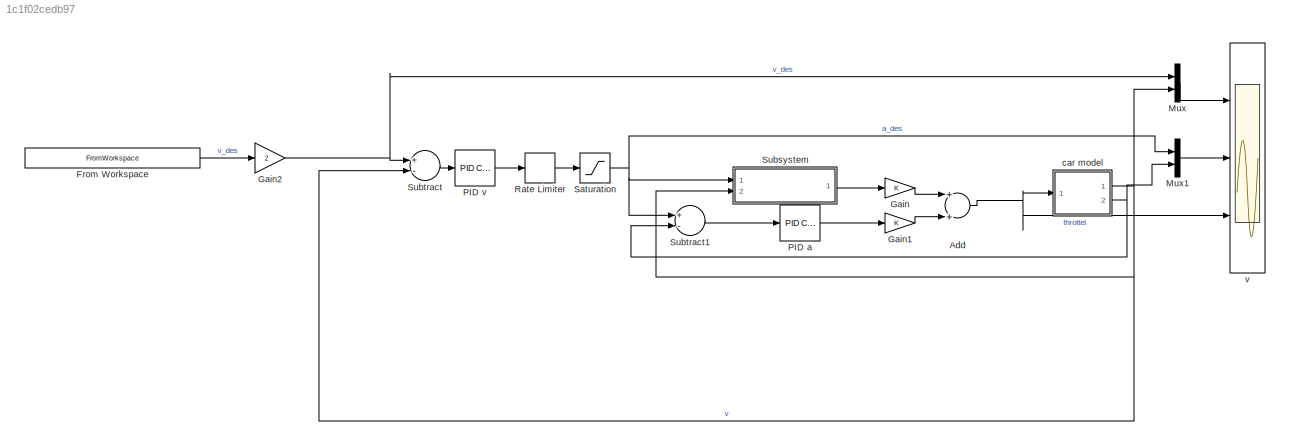
MODEL slx_1c1f02cedb97
KIND model
CONFIG AbsTol = auto
CONFIG EnableMultiTasking = off
CONFIG FixedStep = 0.02
CONFIG MaxStep = auto
CONFIG MinStep = auto
CONFIG RelTol = 1e-3
CONFIG SampleTimeConstraint = Unconstrained
CONFIG Solver = FixedStepAuto
CONFIG SolverName = FixedStepAuto
CONFIG StartTime = 0.0
CONFIG StopTime = time(end)-time(1)
BLOCK [Sum] Add
  InputSameDT = off
  OutDataTypeStr = Inherit: Inherit via internal rule
  Ports = [2, 1]
  SaturateOnIntegerOverflow = off
BLOCK [FromWorkspace] From Workspace
  SampleTime = 0
  VariableName = [time-time(1), v_des]
  ZeroCross = on
BLOCK [Gain] Gain
  OutDataTypeStr = Inherit: Inherit via internal rule
  ParamDataTypeStr = Inherit: Inherit via internal rule
  SaturateOnIntegerOverflow = off
BLOCK [Gain] Gain1
  OutDataTypeStr = Inherit: Inherit via internal rule
  ParamDataTypeStr = Inherit: Inherit via internal rule
  SaturateOnIntegerOverflow = off
BLOCK [Gain] Gain2
  Gain = 2
  OutDataTypeStr = Inherit: Inherit via internal rule
  ParamDataTypeStr = Inherit: Inherit via internal rule
  SaturateOnIntegerOverflow = off
BLOCK [Mux] Mux
  DisplayOption = bar
  Inputs = 2
  Ports = [2, 1]
BLOCK [Mux] Mux1
  DisplayOption = bar
  Inputs = 2
  Ports = [2, 1]
BLOCK [Reference] PID a  REF=simulink/Continuous/PID Controller
  Ports = [1, 1]
  SourceBlock = simulink/Continuous/PID Controller
  SourceProductBaseCode = SL
  SourceProductName = Simulink
  SourceType = PID 1dof
BLOCK [Reference] PID v  REF=simulink/Continuous/PID Controller
  Ports = [1, 1]
  SourceBlock = simulink/Continuous/PID Controller
  SourceProductBaseCode = SL
  SourceProductName = Simulink
  SourceType = PID 1dof
BLOCK [RateLimiter] Rate Limiter
  FallingSlewLimit = -10
  RisingSlewLimit = 10
  SampleTimeMode = inherited
BLOCK [Saturate] Saturation
  InputPortMap = u0
  LowerLimit = -5
  Ports = [1, 1]
  UpperLimit = 1
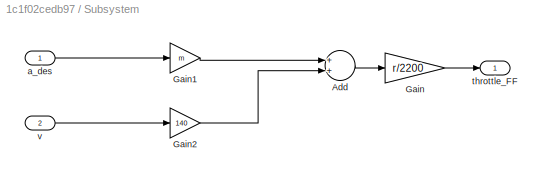
BLOCK [SubSystem] Subsystem
  Ports = [2, 1]
  RequestExecContextInheritance = off
  Variant = off
BLOCK [Sum] Subsystem/Add
  InputSameDT = off
  OutDataTypeStr = Inherit: Inherit via internal rule
  Ports = [2, 1]
  SaturateOnIntegerOverflow = off
BLOCK [Gain] Subsystem/Gain
  Gain = r/2200
  RndMeth = Zero
  SaturateOnIntegerOverflow = off
BLOCK [Gain] Subsystem/Gain1
  Gain = m
  RndMeth = Zero
  SaturateOnIntegerOverflow = off
BLOCK [Gain] Subsystem/Gain2
  Gain = 140
  RndMeth = Zero
  SaturateOnIntegerOverflow = off
BLOCK [Inport] Subsystem/a_des
  IconDisplay = Port number
BLOCK [Outport] Subsystem/throttle_FF
  IconDisplay = Port number
BLOCK [Inport] Subsystem/v
  IconDisplay = Port number
  Port = 2
BLOCK [Sum] Subtract
  AccumDataTypeStr = Inherit: Same as first input
  Inputs = +-
  Ports = [2, 1]
  RndMeth = Zero
  SaturateOnIntegerOverflow = off
BLOCK [Sum] Subtract1
  AccumDataTypeStr = Inherit: Same as first input
  Inputs = +-
  Ports = [2, 1]
  RndMeth = Zero
  SaturateOnIntegerOverflow = off
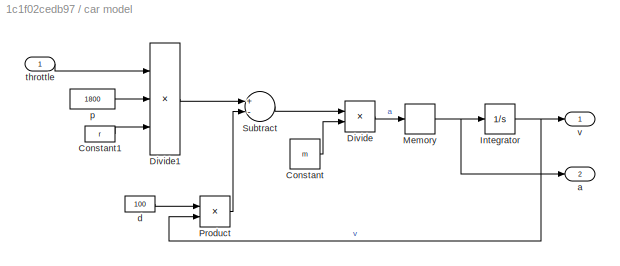
BLOCK [SubSystem] car model
  Ports = [1, 2]
  RequestExecContextInheritance = off
  Variant = off
BLOCK [Constant] car model/Constant
  Value = m
BLOCK [Constant] car model/Constant1
  Value = r
BLOCK [Product] car model/Divide
  Inputs = */
  Ports = [2, 1]
  SaturateOnIntegerOverflow = off
BLOCK [Product] car model/Divide1
  Inputs = **/
  Ports = [3, 1]
  SaturateOnIntegerOverflow = off
BLOCK [Integrator] car model/Integrator
  Ports = [1, 1]
BLOCK [Memory] car model/Memory
BLOCK [Product] car model/Product
  Ports = [2, 1]
  SaturateOnIntegerOverflow = off
BLOCK [Sum] car model/Subtract
  AccumDataTypeStr = Inherit: Same as first input
  Inputs = +-
  Ports = [2, 1]
  RndMeth = Zero
  SaturateOnIntegerOverflow = off
BLOCK [Outport] car model/a
  AttributesFormatString = <[%<OutMin> %<OutMax>]; %<OutputWhenDisabled>>
  IconDisplay = Port number
  Port = 2
  SamplingMode = Sample based
  SignalType = real
  VarSizeSig = No
BLOCK [Constant] car model/d
  Value = 100
BLOCK [Constant] car model/p
  Value = 1800
BLOCK [Inport] car model/throttle
  AttributesFormatString = <[%<OutMin> %<OutMax>]>
  IconDisplay = Port number
  SamplingMode = Sample based
  SignalType = real
  VarSizeSig = No
BLOCK [Outport] car model/v
  AttributesFormatString = <[%<OutMin> %<OutMax>]; %<OutputWhenDisabled>>
  IconDisplay = Port number
  SamplingMode = Sample based
  SignalType = real
  VarSizeSig = No
BLOCK [Scope] v
  NumInputPorts = 3
  Ports = [3]
  ScopeSpecificationString = Simulink.scopes.TimeScopeBlockCfg('CurrentConfiguration', extmgr.ConfigurationSet(extmgr.Configuration('Core','General UI',true),extmgr.Configuration('Core','Source UI',true),extmgr.Configuration('Sources','WiredSimulink',true),extmgr.Configuration('Visuals','Time Domain',true,'SerializedDisplays',{struct('MinYLimReal','-2.78268','MaxYLimReal','25.04416','YLabelReal','','MinYLimMag','0.00000','Max...<+2677ch>
NET Add:1 -> car model:1, v:3
LINE From Workspace:1 -> Gain2:1
LINE Gain1:1 -> Add:2
NET Gain2:1 -> Mux:1, Subtract:1
LINE Gain:1 -> Add:1
LINE Mux1:1 -> v:2
LINE Mux:1 -> v:1
LINE PID a:1 -> Gain1:1
LINE PID v:1 -> Rate Limiter:1
LINE Rate Limiter:1 -> Saturation:1
NET Saturation:1 -> Mux1:1, Subsystem:1, Subtract1:1
LINE Subsystem/Add:1 -> Subsystem/Gain:1
LINE Subsystem/Gain1:1 -> Subsystem/Add:1
LINE Subsystem/Gain2:1 -> Subsystem/Add:2
LINE Subsystem/Gain:1 -> Subsystem/throttle_FF:1
LINE Subsystem/a_des:1 -> Subsystem/Gain1:1
LINE Subsystem/v:1 -> Subsystem/Gain2:1
LINE Subsystem:1 -> Gain:1
LINE Subtract1:1 -> PID a:1
LINE Subtract:1 -> PID v:1
LINE car model/Constant1:1 -> car model/Divide1:3
LINE car model/Constant:1 -> car model/Divide:2
LINE car model/Divide1:1 -> car model/Subtract:1
LINE car model/Divide:1 -> car model/Memory:1
NET car model/Integrator:1 -> car model/Product:2, car model/v:1
NET car model/Memory:1 -> car model/Integrator:1, car model/a:1
LINE car model/Product:1 -> car model/Subtract:2
LINE car model/Subtract:1 -> car model/Divide:1
LINE car model/d:1 -> car model/Product:1
LINE car model/p:1 -> car model/Divide1:2
LINE car model/throttle:1 -> car model/Divide1:1
NET car model:1 -> Mux:2, Subsystem:2, Subtract:2
NET car model:2 -> Mux1:2, Subtract1:2
note: NET lines group one-source signal fan-out (src -> all destinations, sorted); 1:1 wires keep LINE
